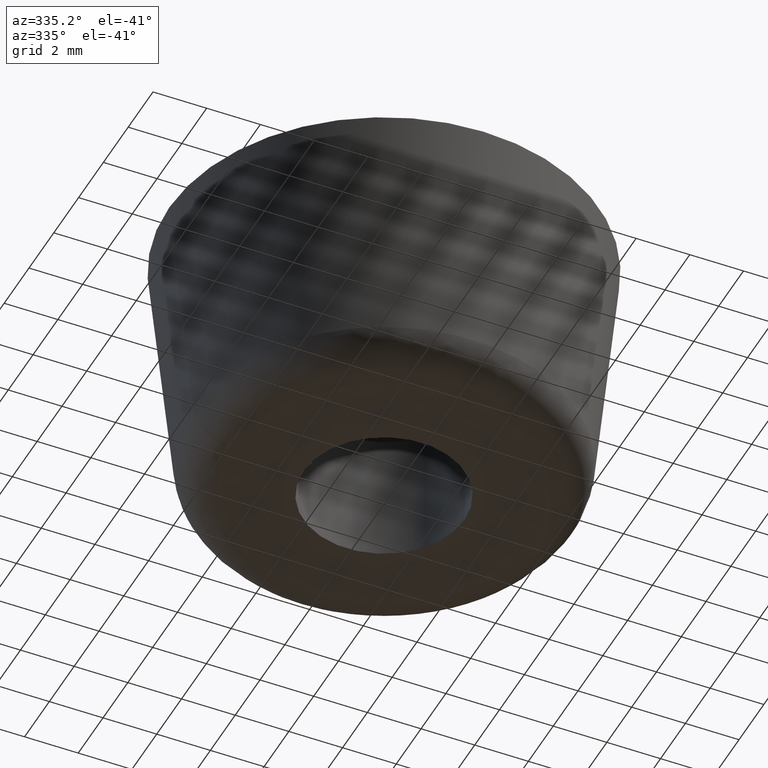
[diagram: clean part render]
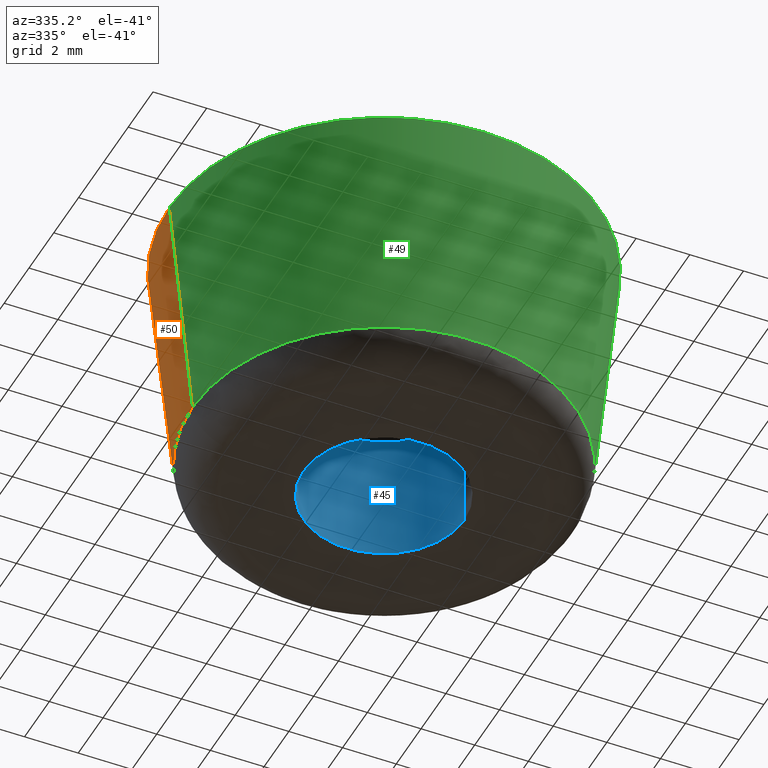
[diagram: same view with three faces highlighted in distinct colors, each labeled with its STEP entity id]
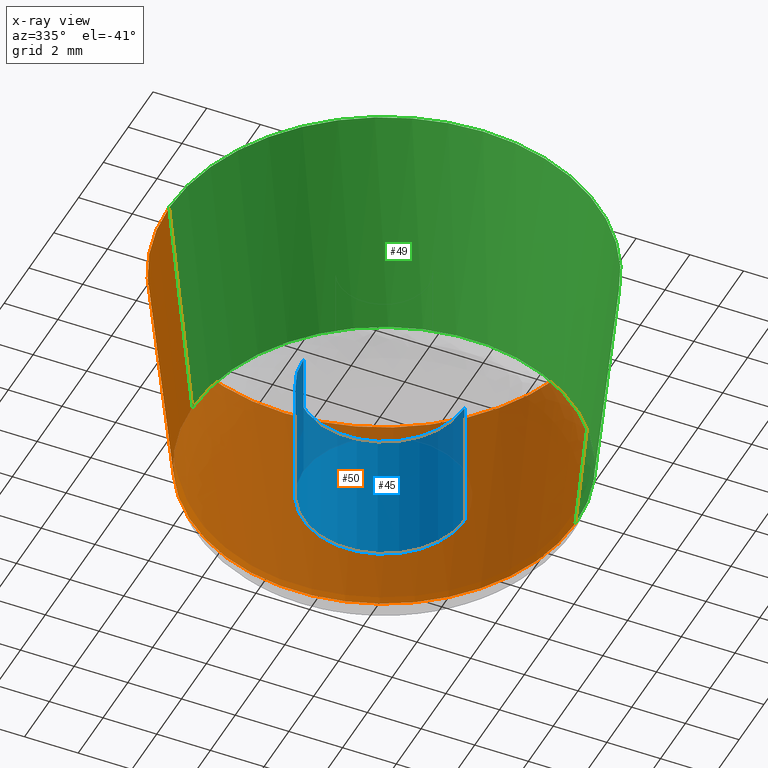
[diagram: x-ray of the same camera — body ghosted, the three highlighted faces saturated]
A machine part, auxiliary view with three faces highlighted in distinct colors.
The next image is the same camera in x-ray (body ghosted, the three faces saturated) — at least one of them is partly hidden behind the body in this view.
Their STEP definitions:

[orange] entity #50 — the highlighted face is a freeform B-spline surface patch.
#50=ADVANCED_FACE('',(#155),#154,.T.);
#154=( BOUNDED_SURFACE() B_SPLINE_SURFACE( 2,1,((#265,#266),(#267,#268),(#269,#270),(#271,#272),(#273,#274)), .UNSPECIFIED.,.F.,.F.,.F.) B_SPLINE_SURFACE_WITH_KNOTS((3,2,3),(2,2),(0.00000000000E+00,5.00000000000E-01,1.00000000000E+00),(0.00000000000E+00,1.00000000000E+00), .UNSPECIFIED. ) GEOMETRIC_REPRESENTATION_ITEM() RATIONAL_B_SPLINE_SURFACE(((1.00000000000E+00,1.00000000000E+00),(7.07106781187E-01,7.07106781187E-01),(1.00000000000E+00,1.00000000000E+00),(7.07106781187E-01,7.07106781187E-01),(1.00000000000E+00,1.00000000000E+00))) REPRESENTATION_ITEM('') SURFACE() );
#155=FACE_OUTER_BOUND('',#275,.T.);
#265=CARTESIAN_POINT('',(7.13507444215E+00,8.73794607725E-16,-8.64925557853E+00));
#266=CARTESIAN_POINT('',(8.00000000000E+00,9.79717439318E-16,2.84217094304E-14));
#267=CARTESIAN_POINT('',(7.13507444215E+00,7.13507444215E+00,-8.64925557853E+00));
#268=CARTESIAN_POINT('',(8.00000000000E+00,8.00000000000E+00,2.84217094304E-14));
#269=CARTESIAN_POINT('',(1.37739574113E-14,7.13507444215E+00,-8.64925557853E+00));
#270=CARTESIAN_POINT('',(1.37209959955E-14,8.00000000000E+00,2.84217094304E-14));
#271=CARTESIAN_POINT('',(-7.13507444215E+00,7.13507444215E+00,-8.64925557853E+00));
#272=CARTESIAN_POINT('',(-8.00000000000E+00,8.00000000000E+00,2.84217094304E-14));
#273=CARTESIAN_POINT('',(-7.13507444215E+00,0.00000000000E+00,-8.64925557853E+00));
#274=CARTESIAN_POINT('',(-8.00000000000E+00,0.00000000000E+00,2.84217094304E-14));
#275=EDGE_LOOP('',(#316,#317,#318,#319));
#316=ORIENTED_EDGE('',*,*,#339,.F.);
#317=ORIENTED_EDGE('',*,*,#340,.T.);
#318=ORIENTED_EDGE('',*,*,#329,.T.);
#319=ORIENTED_EDGE('',*,*,#341,.F.);
#329=EDGE_CURVE('',#399,#398,#406,.T.);
#339=EDGE_CURVE('',#457,#450,#470,.T.);
#340=EDGE_CURVE('',#457,#399,#476,.T.);
#341=EDGE_CURVE('',#450,#398,#482,.T.);
#398=VERTEX_POINT('',#528);
#399=VERTEX_POINT('',#529);
#406=CIRCLE('',#537,8.00000000000E+00);
#450=VERTEX_POINT('',#556);
#457=VERTEX_POINT('',#560);
#470=CIRCLE('',#573,7.13507444215E+00);
#476=(BOUNDED_CURVE() B_SPLINE_CURVE(1,(#574,#575),.UNSPECIFIED.,.F.,.F.) B_SPLINE_CURVE_WITH_KNOTS((2,2),(0.00000000000E+00,1.00000000000E+00),.UNSPECIFIED.) CURVE() GEOMETRIC_REPRESENTATION_ITEM() RATIONAL_B_SPLINE_CURVE((1.00000000000E+00,1.00000000000E+00)) REPRESENTATION_ITEM('') );
#482=(BOUNDED_CURVE() B_SPLINE_CURVE(1,(#576,#577),.UNSPECIFIED.,.F.,.F.) B_SPLINE_CURVE_WITH_KNOTS((2,2),(0.00000000000E+00,1.00000000000E+00),.UNSPECIFIED.) CURVE() GEOMETRIC_REPRESENTATION_ITEM() RATIONAL_B_SPLINE_CURVE((7.50000000000E-01,7.50000000000E-01)) REPRESENTATION_ITEM('') );
#528=CARTESIAN_POINT('',(8.00000000000E+00,8.88178419700E-16,2.84217094304E-14));
#529=CARTESIAN_POINT('',(-8.00000000000E+00,0.00000000000E+00,2.84217094304E-14));
#534=CARTESIAN_POINT('',(1.42108547152E-14,0.00000000000E+00,2.84217094304E-14));
#535=DIRECTION('',(-0.00000000000E+00,0.00000000000E+00,-1.00000000000E+00));
#536=DIRECTION('',(-1.00000000000E+00,-1.22460635382E-16,0.00000000000E+00));
#537=AXIS2_PLACEMENT_3D('',#534,#535,#536);
#556=CARTESIAN_POINT('',(7.13507444215E+00,2.96059473233E-16,-8.64925557853E+00));
#560=CARTESIAN_POINT('',(-7.13507444215E+00,0.00000000000E+00,-8.64925557853E+00));
#570=CARTESIAN_POINT('',(1.42108547152E-14,0.00000000000E+00,-8.64925557853E+00));
#571=DIRECTION('',(-0.00000000000E+00,0.00000000000E+00,-1.00000000000E+00));
#572=DIRECTION('',(-1.00000000000E+00,-1.22460635382E-16,0.00000000000E+00));
#573=AXIS2_PLACEMENT_3D('',#570,#571,#572);
#574=CARTESIAN_POINT('',(-7.13507444215E+00,-1.74753149937E-15,-8.64925557853E+00));
#575=CARTESIAN_POINT('',(-8.00000000000E+00,-1.95937016612E-15,2.84217094304E-14));
#576=CARTESIAN_POINT('',(7.13507444215E+00,1.77635683940E-15,-8.64925557853E+00));
#577=CARTESIAN_POINT('',(8.00000000000E+00,2.07241631263E-15,2.84217094304E-14));

[blue] entity #45 — the highlighted cylindrical surface (partial cylindrical patch) has radius 3 mm, axis along (0, -0, 1).
#45=ADVANCED_FACE('',(#105),#104,.F.);
#104=CYLINDRICAL_SURFACE('',#195,3.00000000000E+00);
#105=FACE_OUTER_BOUND('',#196,.T.);
#192=CARTESIAN_POINT('',(1.42108547152E-14,0.00000000000E+00,0.00000000000E+00));
#193=DIRECTION('',(0.00000000000E+00,-0.00000000000E+00,1.00000000000E+00));
#194=DIRECTION('',(1.00000000000E+00,-0.00000000000E+00,-0.00000000000E+00));
#195=AXIS2_PLACEMENT_3D('',#192,#193,#194);
#196=EDGE_LOOP('',(#296,#297,#298,#299));
#296=ORIENTED_EDGE('',*,*,#327,.T.);
#297=ORIENTED_EDGE('',*,*,#334,.T.);
#298=ORIENTED_EDGE('',*,*,#320,.F.);
#299=ORIENTED_EDGE('',*,*,#335,.F.);
#320=EDGE_CURVE('',#342,#343,#344,.T.);
#327=EDGE_CURVE('',#385,#384,#392,.T.);
#334=EDGE_CURVE('',#384,#343,#438,.T.);
#335=EDGE_CURVE('',#385,#342,#444,.T.);
#342=VERTEX_POINT('',#488);
#343=VERTEX_POINT('',#489);
#344=CIRCLE('',#493,3.00000000000E+00);
#384=VERTEX_POINT('',#518);
#385=VERTEX_POINT('',#519);
#392=CIRCLE('',#527,3.00000000000E+00);
#438=(BOUNDED_CURVE() B_SPLINE_CURVE(1,(#552,#553),.UNSPECIFIED.,.F.,.F.) B_SPLINE_CURVE_WITH_KNOTS((2,2),(8.33333383004E-02,9.16666664635E-01),.UNSPECIFIED.) CURVE() GEOMETRIC_REPRESENTATION_ITEM() RATIONAL_B_SPLINE_CURVE((1.00000000000E+00,1.00000000000E+00)) REPRESENTATION_ITEM('') );
#444=(BOUNDED_CURVE() B_SPLINE_CURVE(1,(#554,#555),.UNSPECIFIED.,.F.,.F.) B_SPLINE_CURVE_WITH_KNOTS((2,2),(8.33333333333E-02,9.16666666667E-01),.UNSPECIFIED.) CURVE() GEOMETRIC_REPRESENTATION_ITEM() RATIONAL_B_SPLINE_CURVE((7.50000000000E-01,7.50000000000E-01)) REPRESENTATION_ITEM('') );
#488=CARTESIAN_POINT('',(-3.00000000000E+00,0.00000000000E+00,-5.00000000000E+00));
#489=CARTESIAN_POINT('',(3.00000000000E+00,-1.48029736617E-16,-5.00000000000E+00));
#490=CARTESIAN_POINT('',(1.42108547152E-14,0.00000000000E+00,-5.00000000000E+00));
#491=DIRECTION('',(-0.00000000000E+00,0.00000000000E+00,-1.00000000000E+00));
#492=DIRECTION('',(-1.00000000000E+00,-1.22460635382E-16,0.00000000000E+00));
#493=AXIS2_PLACEMENT_3D('',#490,#491,#492);
#518=CARTESIAN_POINT('',(3.00000000000E+00,-1.48029736617E-16,-1.00000000000E+01));
#519=CARTESIAN_POINT('',(-3.00000000000E+00,0.00000000000E+00,-1.00000000000E+01));
#524=CARTESIAN_POINT('',(1.42108547152E-14,0.00000000000E+00,-1.00000000000E+01));
#525=DIRECTION('',(-0.00000000000E+00,0.00000000000E+00,-1.00000000000E+00));
#526=DIRECTION('',(-1.00000000000E+00,-1.22460635382E-16,0.00000000000E+00));
#527=AXIS2_PLACEMENT_3D('',#524,#525,#526);
#552=CARTESIAN_POINT('',(3.00000000000E+00,0.00000000000E+00,-9.99999997020E+00));
#553=CARTESIAN_POINT('',(3.00000000000E+00,0.00000000000E+00,-5.00000001219E+00));
#554=CARTESIAN_POINT('',(-3.00000000000E+00,-1.48029736617E-16,-1.00000000000E+01));
#555=CARTESIAN_POINT('',(-3.00000000000E+00,-1.48029736617E-16,-5.00000000000E+00));

[green] entity #49 — the highlighted face is a freeform B-spline surface patch.
#49=ADVANCED_FACE('',(#145),#144,.T.);
#144=( BOUNDED_SURFACE() B_SPLINE_SURFACE( 2,1,((#254,#255),(#256,#257),(#258,#259),(#260,#261),(#262,#263)), .UNSPECIFIED.,.F.,.F.,.F.) B_SPLINE_SURFACE_WITH_KNOTS((3,2,3),(2,2),(0.00000000000E+00,5.00000000000E-01,1.00000000000E+00),(0.00000000000E+00,1.00000000000E+00), .UNSPECIFIED. ) GEOMETRIC_REPRESENTATION_ITEM() RATIONAL_B_SPLINE_SURFACE(((1.00000000000E+00,1.00000000000E+00),(7.07106781187E-01,7.07106781187E-01),(1.00000000000E+00,1.00000000000E+00),(7.07106781187E-01,7.07106781187E-01),(1.00000000000E+00,1.00000000000E+00))) REPRESENTATION_ITEM('') SURFACE() );
#145=FACE_OUTER_BOUND('',#264,.T.);
#254=CARTESIAN_POINT('',(-7.13507444215E+00,-1.74758921545E-15,-8.64925557853E+00));
#255=CARTESIAN_POINT('',(-8.00000000000E+00,-1.95943487864E-15,2.84217094304E-14));
#256=CARTESIAN_POINT('',(-7.13507444215E+00,-7.13507444215E+00,-8.64925557853E+00));
#257=CARTESIAN_POINT('',(-8.00000000000E+00,-8.00000000000E+00,2.84217094304E-14));
#258=CARTESIAN_POINT('',(1.55215466268E-14,-7.13507444215E+00,-8.64925557853E+00));
#259=CARTESIAN_POINT('',(1.56804308742E-14,-8.00000000000E+00,2.84217094304E-14));
#260=CARTESIAN_POINT('',(7.13507444215E+00,-7.13507444215E+00,-8.64925557853E+00));
#261=CARTESIAN_POINT('',(8.00000000000E+00,-8.00000000000E+00,2.84217094304E-14));
#262=CARTESIAN_POINT('',(7.13507444215E+00,8.73794607725E-16,-8.64925557853E+00));
#263=CARTESIAN_POINT('',(8.00000000000E+00,9.79717439318E-16,2.84217094304E-14));
#264=EDGE_LOOP('',(#312,#313,#314,#315));
#312=ORIENTED_EDGE('',*,*,#328,.T.);
#313=ORIENTED_EDGE('',*,*,#340,.F.);
#314=ORIENTED_EDGE('',*,*,#337,.F.);
#315=ORIENTED_EDGE('',*,*,#341,.T.);
#328=EDGE_CURVE('',#398,#399,#400,.T.);
#337=EDGE_CURVE('',#450,#457,#458,.T.);
#340=EDGE_CURVE('',#457,#399,#476,.T.);
#341=EDGE_CURVE('',#450,#398,#482,.T.);
#398=VERTEX_POINT('',#528);
#399=VERTEX_POINT('',#529);
#400=CIRCLE('',#533,8.00000000000E+00);
#450=VERTEX_POINT('',#556);
#457=VERTEX_POINT('',#560);
#458=CIRCLE('',#564,7.13507444215E+00);
#476=(BOUNDED_CURVE() B_SPLINE_CURVE(1,(#574,#575),.UNSPECIFIED.,.F.,.F.) B_SPLINE_CURVE_WITH_KNOTS((2,2),(0.00000000000E+00,1.00000000000E+00),.UNSPECIFIED.) CURVE() GEOMETRIC_REPRESENTATION_ITEM() RATIONAL_B_SPLINE_CURVE((1.00000000000E+00,1.00000000000E+00)) REPRESENTATION_ITEM('') );
#482=(BOUNDED_CURVE() B_SPLINE_CURVE(1,(#576,#577),.UNSPECIFIED.,.F.,.F.) B_SPLINE_CURVE_WITH_KNOTS((2,2),(0.00000000000E+00,1.00000000000E+00),.UNSPECIFIED.) CURVE() GEOMETRIC_REPRESENTATION_ITEM() RATIONAL_B_SPLINE_CURVE((7.50000000000E-01,7.50000000000E-01)) REPRESENTATION_ITEM('') );
#528=CARTESIAN_POINT('',(8.00000000000E+00,8.88178419700E-16,2.84217094304E-14));
#529=CARTESIAN_POINT('',(-8.00000000000E+00,0.00000000000E+00,2.84217094304E-14));
#530=CARTESIAN_POINT('',(1.42108547152E-14,0.00000000000E+00,2.84217094304E-14));
#531=DIRECTION('',(-0.00000000000E+00,0.00000000000E+00,-1.00000000000E+00));
#532=DIRECTION('',(-1.00000000000E+00,-1.22460635382E-16,0.00000000000E+00));
#533=AXIS2_PLACEMENT_3D('',#530,#531,#532);
#556=CARTESIAN_POINT('',(7.13507444215E+00,2.96059473233E-16,-8.64925557853E+00));
#560=CARTESIAN_POINT('',(-7.13507444215E+00,0.00000000000E+00,-8.64925557853E+00));
#561=CARTESIAN_POINT('',(1.42108547152E-14,0.00000000000E+00,-8.64925557853E+00));
#562=DIRECTION('',(-0.00000000000E+00,0.00000000000E+00,-1.00000000000E+00));
#563=DIRECTION('',(-1.00000000000E+00,-1.22460635382E-16,0.00000000000E+00));
#564=AXIS2_PLACEMENT_3D('',#561,#562,#563);
#574=CARTESIAN_POINT('',(-7.13507444215E+00,-1.74753149937E-15,-8.64925557853E+00));
#575=CARTESIAN_POINT('',(-8.00000000000E+00,-1.95937016612E-15,2.84217094304E-14));
#576=CARTESIAN_POINT('',(7.13507444215E+00,1.77635683940E-15,-8.64925557853E+00));
#577=CARTESIAN_POINT('',(8.00000000000E+00,2.07241631263E-15,2.84217094304E-14));